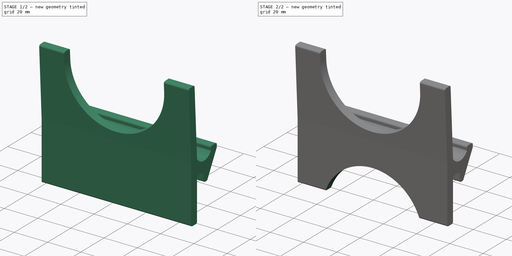
[diagram: build sequence overview — one tinted view per stage of 2, left to right]
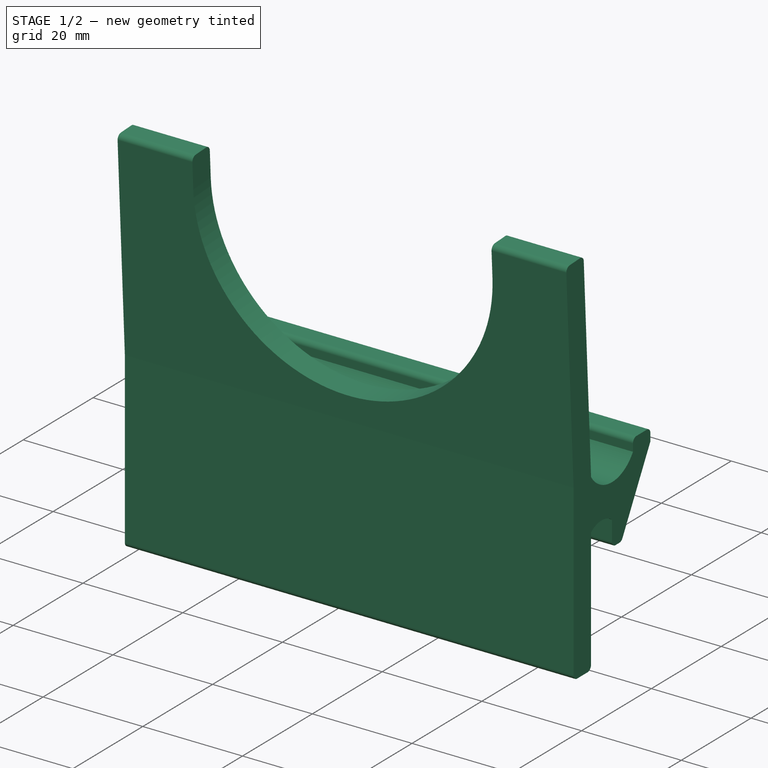
[diagram: stage 1 of 2 — iso view after this stage's code; geometry added in this stage tinted green]
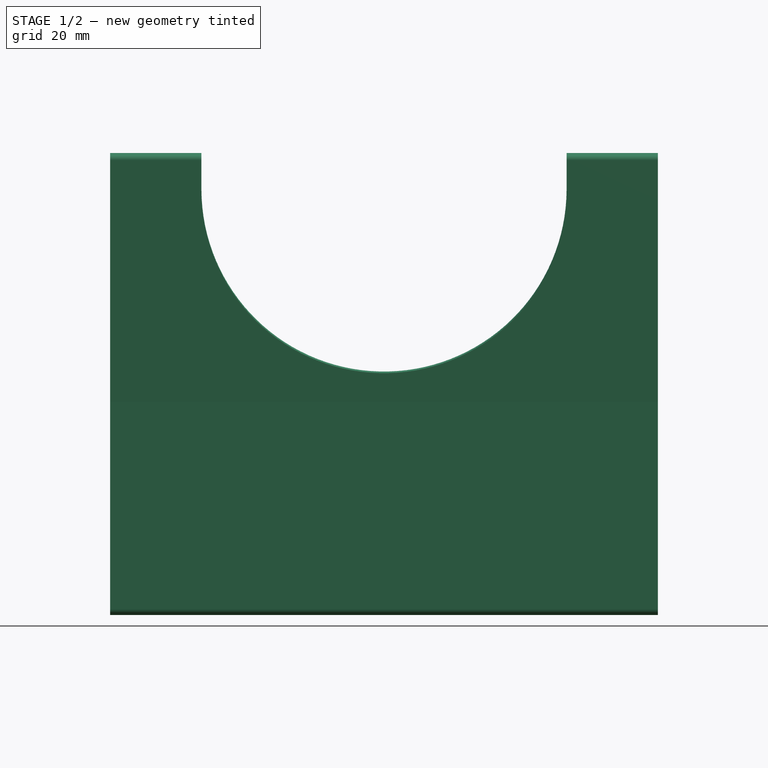
[diagram: stage 1 of 2 — front view after this stage's code; geometry added in this stage tinted green]
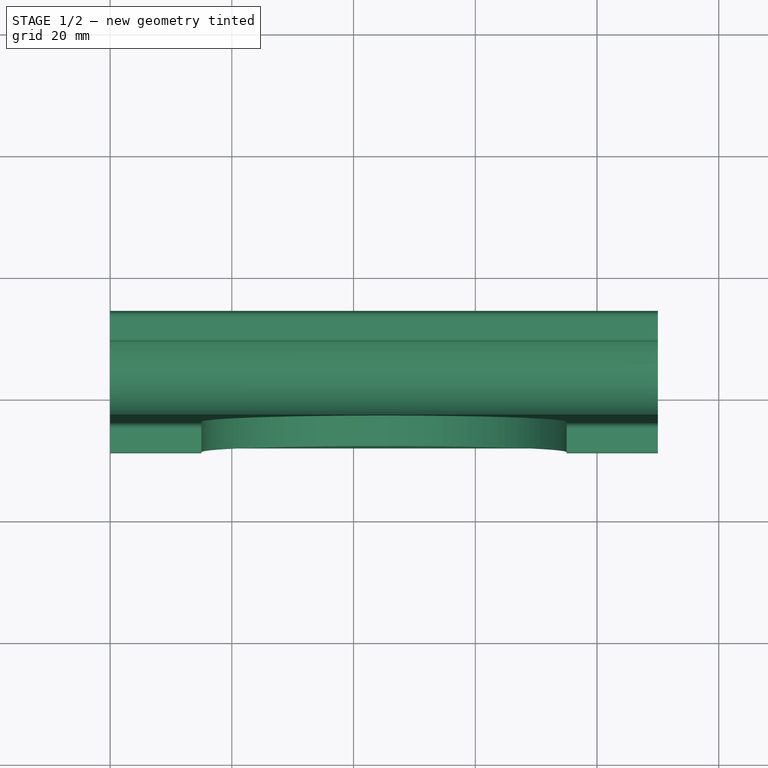
[diagram: stage 1 of 2 — top view after this stage's code; geometry added in this stage tinted green]
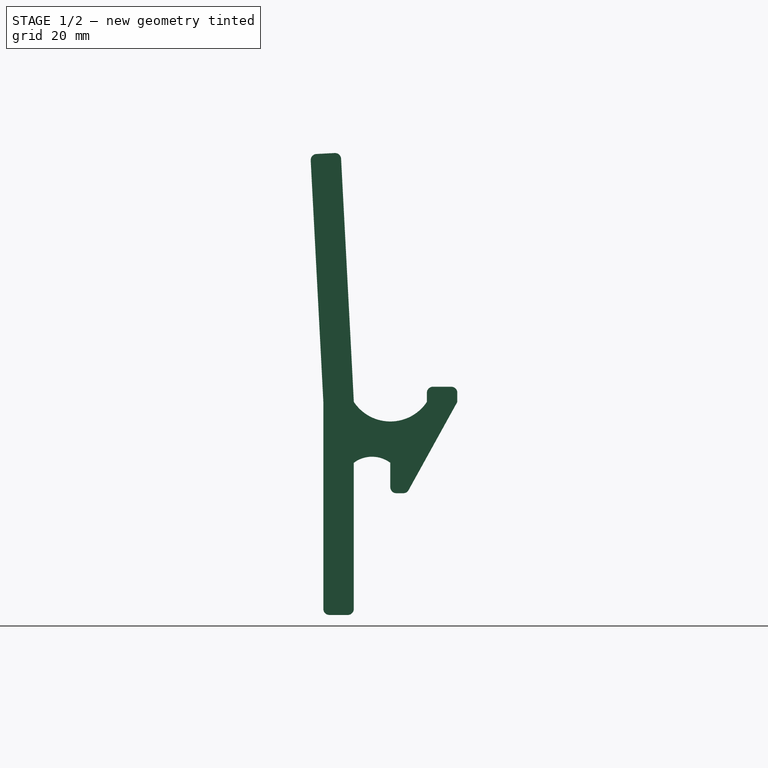
[diagram: stage 1 of 2 — right view after this stage's code; geometry added in this stage tinted green]
FCSTD DOCUMENT  (FreeCAD 0.18R16146 (Git))
Label: handyhalter
License: All rights reserved
LicenseURL: http://en.wikipedia.org/wiki/All_rights_reserved
objects: Sketcher::SketchObject×4, PartDesign::Pocket×2, PartDesign::Pad×1, PartDesign::Body×1
note: 11 computed .brp shape members not serialized (recipe doc carries the construction recipe); baked Part::Feature solids carry a one-line shape summary decoded from their .brp

FEATURE [Sketcher::SketchObject] Sketch
  MapMode = 5
  Placement = pos=(0,0,0) rot=(0.57735,0.57735,0.57735;2.0944rad)
  Support = -> [YZ_Plane]
  sketch-geometry (22):
    g0: LineSegment StartX=-7 StartY=-25 StartZ=0 EndX=-4 EndY=-25 EndZ=0
    g1: LineSegment StartX=-3 StartY=-24 StartZ=0 EndX=-3 EndY=0 EndZ=0
    g2: LineSegment StartX=3 StartY=0 StartZ=0 EndX=3 EndY=-4 EndZ=0
    g3: LineSegment StartX=14.0069 StartY=10 StartZ=0 EndX=14.0069 EndY=11.5 EndZ=0
    g4: LineSegment StartX=13.0069 StartY=12.5 StartZ=0 EndX=10.0069 EndY=12.5 EndZ=0
    g5: LineSegment StartX=9.00686 StartY=11.5 StartZ=0 EndX=9.00686 EndY=10 EndZ=0
    g6: ArcOfCircle CenterX=0 CenterY=-4 CenterZ=0 NormalX=0 NormalY=0 NormalZ=1 AngleXU=0 Radius=5 StartAngle=0.927295 EndAngle=2.2143
    g7: ArcOfCircle CenterX=3.00686 CenterY=14 CenterZ=0 NormalX=0 NormalY=0 NormalZ=1 AngleXU=0 Radius=7.2111 StartAngle=3.7296 EndAngle=5.69518
    g8: LineSegment StartX=-2.99314 StartY=10 StartZ=0 EndX=-5.08658 EndY=49.9452 EndZ=0
    g9: LineSegment StartX=-6.13754 StartY=50.8915 StartZ=0 EndX=-9.13343 EndY=50.7345 EndZ=0
    g10: LineSegment StartX=-10.0797 StartY=49.6835 StartZ=0 EndX=-8 EndY=10 EndZ=0
    g11: LineSegment StartX=-8 StartY=10 StartZ=0 EndX=-8 EndY=-24 EndZ=0
    g12: ArcOfCircle CenterX=4 CenterY=-4 CenterZ=0 NormalX=0 NormalY=0 NormalZ=1 AngleXU=0 Radius=1 StartAngle=3.14159 EndAngle=4.71239
    g13: ArcOfCircle CenterX=13.0069 CenterY=11.5 CenterZ=0 NormalX=0 NormalY=0 NormalZ=1 AngleXU=0 Radius=1 StartAngle=5e-16 EndAngle=1.5708
    g14: ArcOfCircle CenterX=10.0069 CenterY=11.5 CenterZ=0 NormalX=0 NormalY=0 NormalZ=1 AngleXU=0 Radius=1 StartAngle=1.5708 EndAngle=3.14159
    g15: ArcOfCircle CenterX=-4 CenterY=-24 CenterZ=0 NormalX=0 NormalY=0 NormalZ=1 AngleXU=0 Radius=1 StartAngle=4.71239 EndAngle=6.28319
    g16: ArcOfCircle CenterX=-7 CenterY=-24 CenterZ=0 NormalX=0 NormalY=0 NormalZ=1 AngleXU=0 Radius=1 StartAngle=3.14159 EndAngle=4.71239
    g17: ArcOfCircle CenterX=-6.08521 CenterY=49.8928 CenterZ=0 NormalX=0 NormalY=0 NormalZ=1 AngleXU=0 Radius=1 StartAngle=0.0523599 EndAngle=1.62316
    g18: ArcOfCircle CenterX=-9.08109 CenterY=49.7358 CenterZ=0 NormalX=0 NormalY=0 NormalZ=1 AngleXU=0 Radius=1 StartAngle=1.62316 EndAngle=3.19395
    g19: LineSegment StartX=14.0069 StartY=10 StartZ=0 EndX=6 EndY=-4.48381 EndZ=0
    g20: LineSegment StartX=5.12483 StartY=-5 StartZ=0 EndX=4 EndY=-5 EndZ=0
    g21: ArcOfCircle CenterX=5.12483 CenterY=-4 CenterZ=0 NormalX=0 NormalY=0 NormalZ=1 AngleXU=0 Radius=1 StartAngle=4.71239 EndAngle=5.77818
  constraints (60):
    c: Horizontal(g0)
    c: Vertical(g1)
    c: Vertical(g2)
    c: Vertical(g3)
    c: Horizontal(g4)
    c: Vertical(g5)
    c: Symmetric(g1,g2,g-1)
    c: Coincident(g6,g2)
    c: Coincident(g1,g6)
    c: PointOnObject(g6,g-2)
    c: DistanceY(g6,g-1) = 4
    c: Coincident(g7,g5)
    c: Horizontal(g5,g7)
    c: DistanceY(g5,g7) = 4
    c: Coincident(g7,g8)
    c: Coincident(g10,g11)
    c: Vertical(g11)
    c: Horizontal(g10,g7)
    c: DistanceX(g1,g2) = 6
    c: Angle(g10,g9) = 1.5708
    c: Tangent(g2,g12) = -1.5708
    c: DistanceX(g2,g12) = 1
    c: DistanceX(g7,g5) = 12
    c: Parallel(g10,g8)
    c: Tangent(g3,g13) = -1.5708
    c: Tangent(g4,g13) = -1.5708
    c: Tangent(g4,g14) = -1.5708
    c: Tangent(g5,g14) = -1.5708
    c: Radius(g13) = 1
    c: Radius(g14) = 1
    c: Tangent(g0,g15) = -1.5708
    c: Tangent(g1,g15) = -1.5708
    c: Tangent(g0,g16) = -1.5708
    c: Tangent(g11,g16) = -1.5708
    c: Radius(g15) = 1
    c: Radius(g16) = 1
    c: Tangent(g8,g17) = -1.5708
    c: Tangent(g9,g17) = -1.5708
    c: Tangent(g9,g18) = -1.5708
    c: Tangent(g10,g18) = -1.5708
    c: Radius(g18) = 1
    c: Radius(g17) = 1
    c: Distance(g8,g10) = 5
    c: DistanceX(g11,g1) = 5
    c: Distance(g5,g5) = 1.5
    c: Angle(g5,g8) = 0.0523599
    c: DistanceY(g-1,g7) = 10
    c: DistanceY(g0,g-1) = 25
    c: Distance(g8) = 40
    c: Distance(g2) = 4
    c: Coincident(g3,g19)
    c: Coincident(g20,g12)
    c: Horizontal(g20)
    c: Tangent(g19,g21) = 1.5708
    c: Tangent(g20,g21) = 1.5708
    c: Radius(g21) = 1
    c: Horizontal(g3,g5)
    c: DistanceX(g5,g3) = 5
    c: DistanceX(g2,g19) = 3
    c: Angle(g12) = 1.5708
FEATURE [PartDesign::Pad] Pad
  Length = 90
  Length2 = 100
  Placement = pos=(0,0,0) rot=(0.57735,0.57735,0.57735;2.0944rad)
  Profile = -> Sketch
  Refine = true
  Type = 0
FEATURE [Sketcher::SketchObject] Sketch001
  MapMode = 5
  Placement = pos=(-1e-15,-2.4623,-0.129044) rot=(-0.567007,-0.567007,-0.5975;2.06443rad)
  Support = -> [Pad]
FEATURE [Sketcher::SketchObject] Sketch002
  ExternalGeometry = -> [Pad]
  MapMode = 5
  Placement = pos=(-1e-15,-2.4623,-0.129044) rot=(-0.567007,-0.567007,-0.5975;2.06443rad)
  Support = -> [Pad]
  sketch-geometry (5):
    g0: LineSegment StartX=51.1429 StartY=75 StartZ=0 EndX=45.1429 EndY=75 EndZ=0
    g1: ArcOfCircle CenterX=45.1429 CenterY=45 CenterZ=0 NormalX=0 NormalY=0 NormalZ=1 AngleXU=0 Radius=30 StartAngle=1.5708 EndAngle=4.71239
    g2: LineSegment StartX=45.1429 StartY=15 StartZ=0 EndX=51.1429 EndY=15 EndZ=0
    g3: LineSegment StartX=51.1429 StartY=15 StartZ=0 EndX=51.1429 EndY=75 EndZ=0
    g4: GeomPoint X=51.1429 Y=45 Z=0
  constraints (11):
    c: Horizontal(g0)
    c: Tangent(g0,g1) = -1.5708
    c: Tangent(g1,g2) = -1.5708
    c: Coincident(g2,g3)
    c: Coincident(g3,g0)
    c: Vertical(g3)
    c: Horizontal(g2)
    c: Symmetric(g0,g2,g4)
    c: Symmetric(g-3,g-3,g4)
    c: DistanceY(g0,g-5) = 15
    c: DistanceX(g-6,g1) = 35
FEATURE [PartDesign::Pocket] Pocket
  BaseFeature = -> Pad
  Length = 5
  Length2 = 100
  Placement = pos=(0,0,0) rot=(0.57735,0.57735,0.57735;2.0944rad)
  Profile = -> Sketch002
  Refine = true
  Type = 1
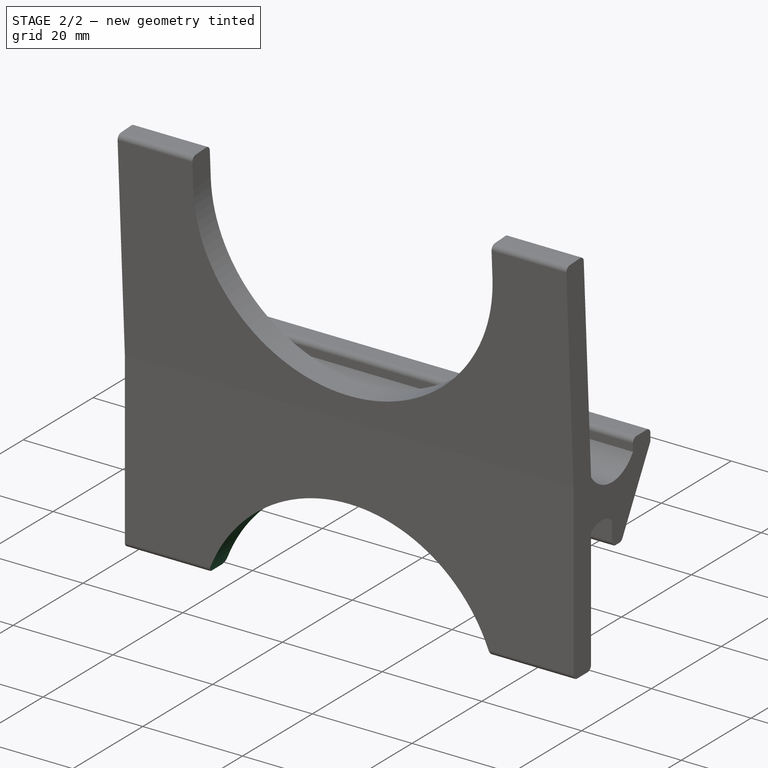
[diagram: stage 2 of 2 — iso view after this stage's code; geometry added in this stage tinted green]
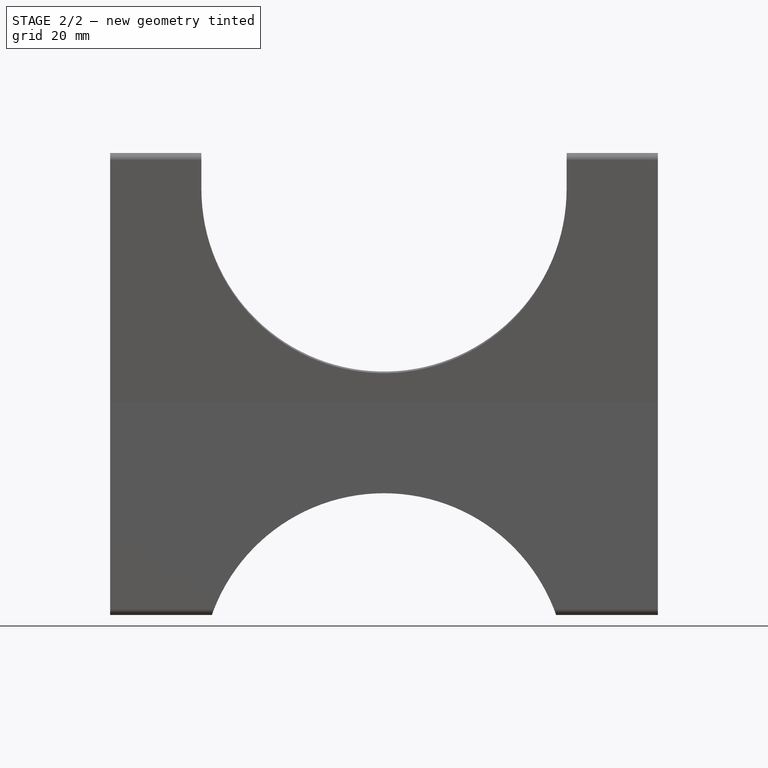
[diagram: stage 2 of 2 — front view after this stage's code; geometry added in this stage tinted green]
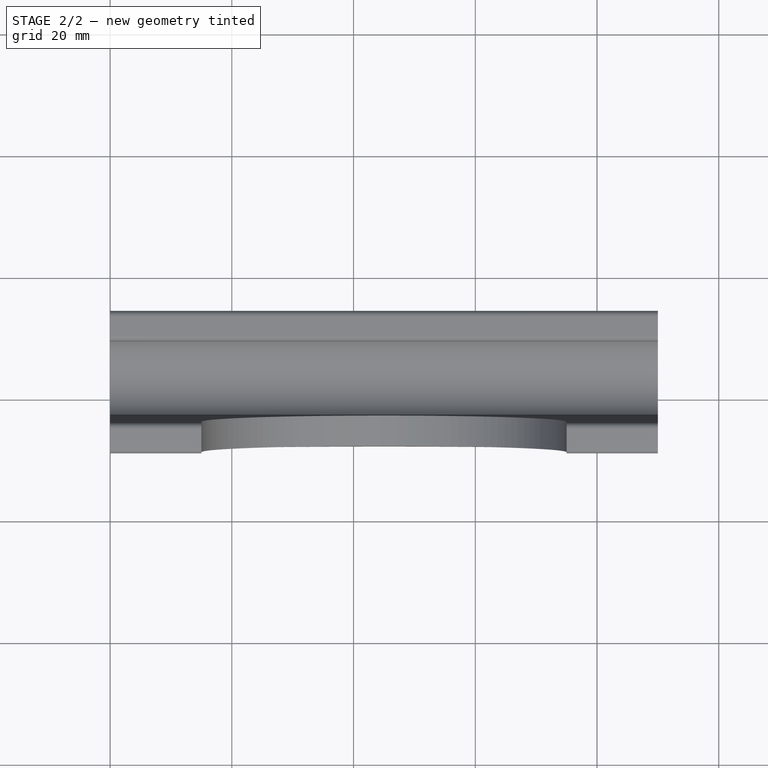
[diagram: stage 2 of 2 — top view after this stage's code; geometry added in this stage tinted green]
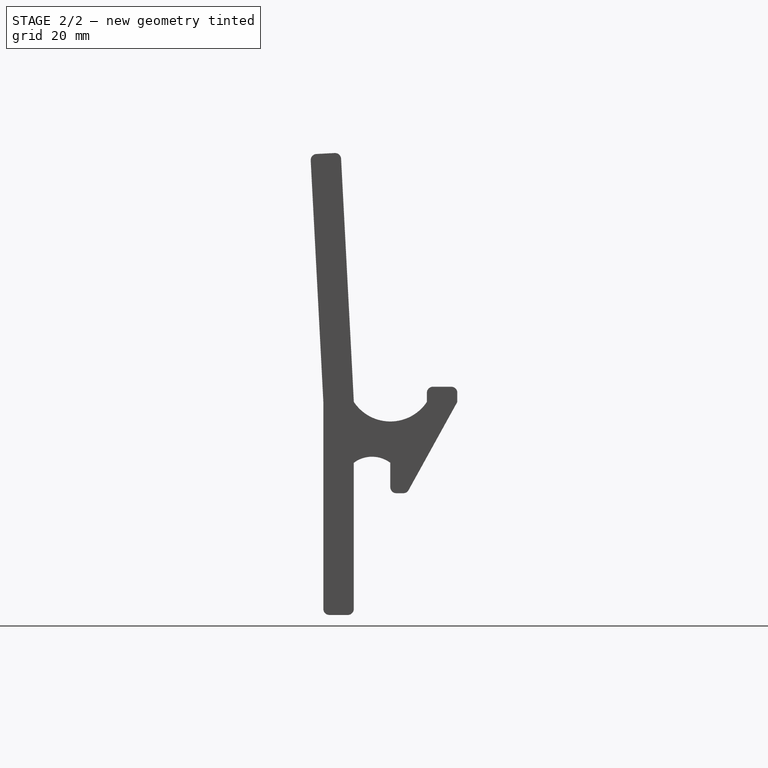
[diagram: stage 2 of 2 — right view after this stage's code; geometry added in this stage tinted green]
FEATURE [Sketcher::SketchObject] Sketch003
  ExternalGeometry = -> [Pocket]
  MapMode = 5
  Placement = pos=(-1.3e-15,-3,2e-15) rot=(0.57735,0.57735,0.57735;4.18879rad)
  Support = -> [Pocket]
  sketch-geometry (4):
    g0: LineSegment StartX=-75 StartY=75 StartZ=0 EndX=-35 EndY=75 EndZ=0
    g1: ArcOfCircle CenterX=-35 CenterY=45 CenterZ=0 NormalX=0 NormalY=0 NormalZ=1 AngleXU=0 Radius=30 StartAngle=4.71239 EndAngle=7.85398
    g2: LineSegment StartX=-35 StartY=15 StartZ=0 EndX=-75 EndY=15 EndZ=0
    g3: LineSegment StartX=-75 StartY=15 StartZ=0 EndX=-75 EndY=75 EndZ=0
  constraints (10):
    c: Horizontal(g0)
    c: Tangent(g0,g1) = 1.5708
    c: Coincident(g1,g2)
    c: Horizontal(g2)
    c: Coincident(g2,g3)
    c: Coincident(g3,g0)
    c: Vertical(g3)
    c: Vertical(g1,g0)
    c: DistanceY(g-1,g2) = 15
    c: DistanceX(g2,g2) = 40
FEATURE [PartDesign::Pocket] Pocket001
  BaseFeature = -> Pocket
  Length = 5
  Length2 = 100
  Placement = pos=(0,0,0) rot=(0.57735,0.57735,0.57735;2.0944rad)
  Profile = -> Sketch003
  Refine = true
  Type = 1
FEATURE [PartDesign::Body] Body
  Group = -> [Sketch,Pad,Sketch001,Sketch002,Pocket,Sketch003,Pocket001]
  Origin = -> Origin
  Tip = -> Pocket001
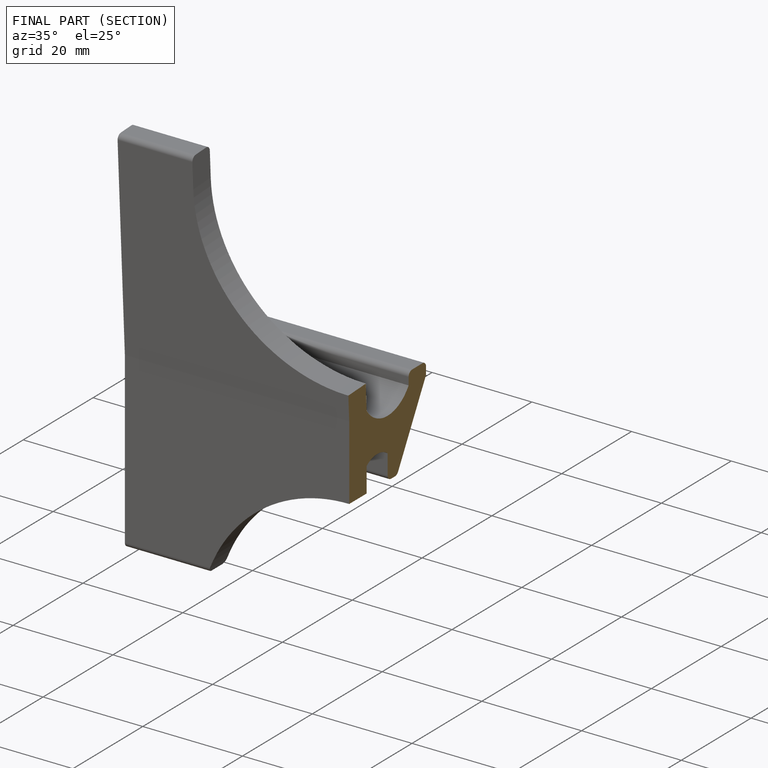
[diagram: finished part — half-section view (interior)]
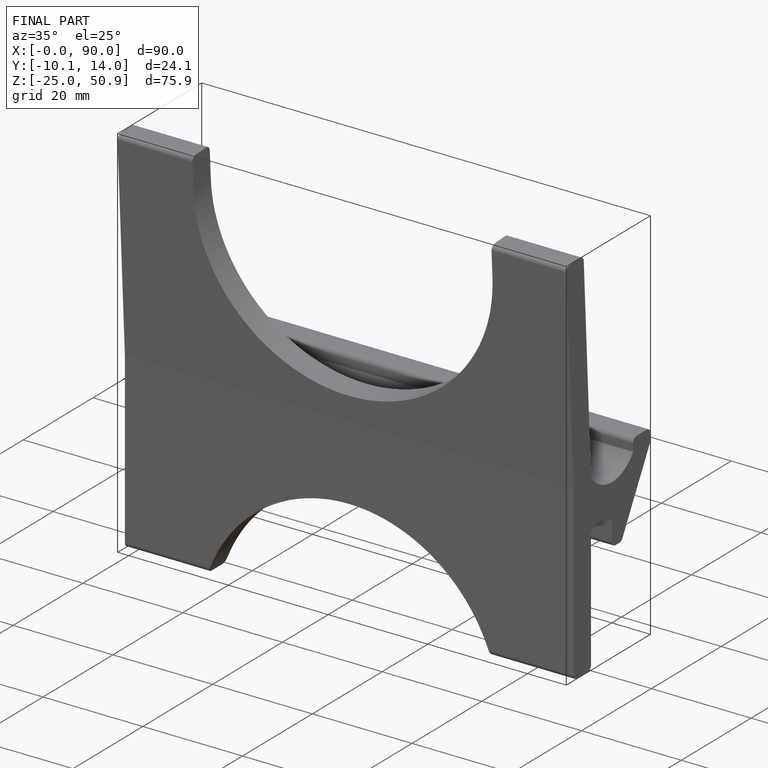
[diagram: finished part — iso view with bounding-box wireframe]
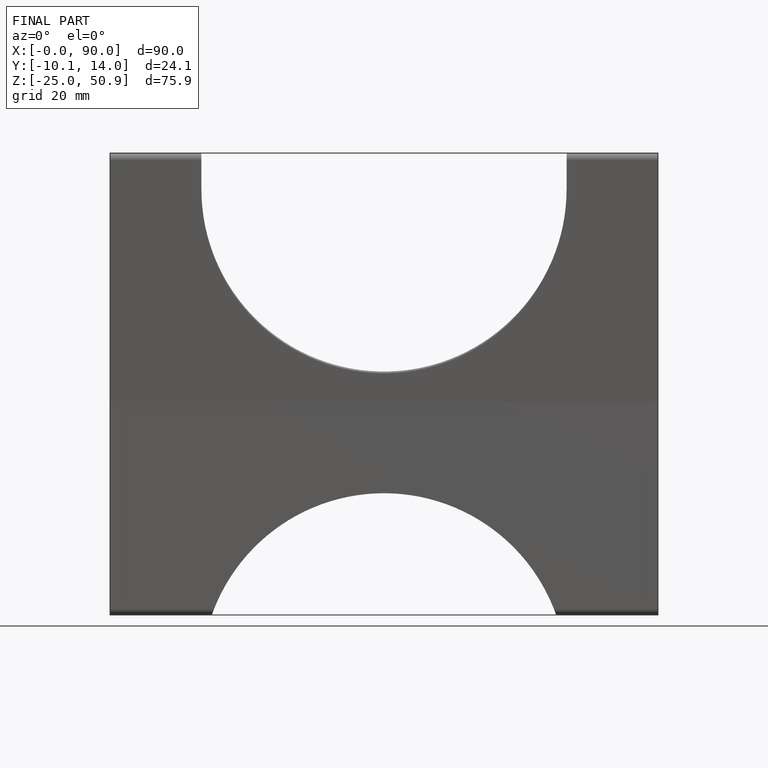
[diagram: finished part — front view with bounding-box wireframe]
